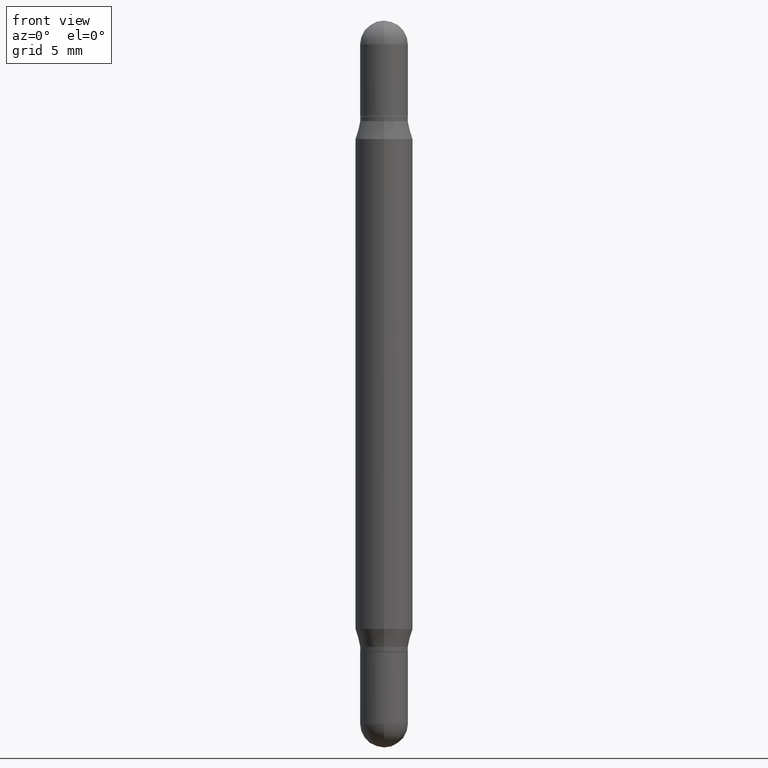
[diagram: clean part render]
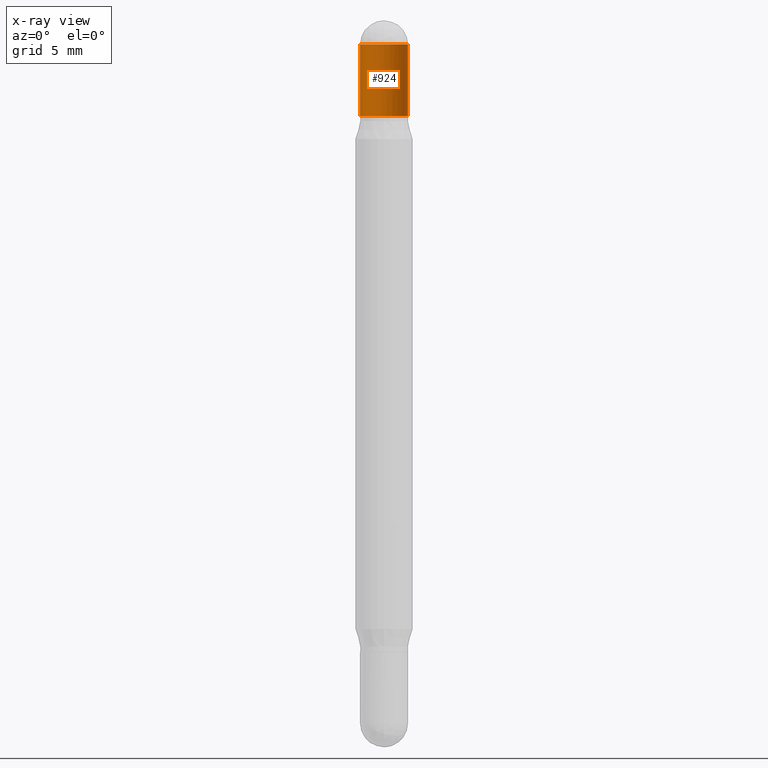
[diagram: x-ray — body ghosted, one internal face saturated and labeled with its STEP entity id]
A machine part, front view, then the same camera in x-ray: the body is ghosted and one INTERNAL B-rep face — a face not visible from any outside direction — is saturated and labeled: STEP entity #924.
In plain terms, the highlighted cylindrical surface (edge-blend (fillet) strip) has radius 1.2497 mm, axis along (-0, -0, -1).
Its self-contained STEP definition (entity closure, byte-faithful):
#3 = CARTESIAN_POINT ( 'NONE',  ( 0.04920000000000000068, -7.806053374026365475E-16, -0.04920000000000011864 ) ) ;
#66 = VERTEX_POINT ( 'NONE', #3 ) ;
#118 = EDGE_LOOP ( 'NONE', ( #401, #148, #852, #803, #239 ) ) ;
#129 = DIRECTION ( 'NONE',  ( -2.445468806185136877E-29, -3.479614466977828648E-15, -1.000000000000000000 ) ) ;
#135 = CARTESIAN_POINT ( 'NONE',  ( -0.04920000000000000068, -4.877191716054020290E-15, -1.496099999999999985 ) ) ;
#147 = CIRCLE ( 'NONE', #206, 0.04920000000000000068 ) ;
#148 = ORIENTED_EDGE ( 'NONE', *, *, #1107, .F. ) ;
#181 = EDGE_CURVE ( 'NONE', #66, #990, #563, .T. ) ;
#193 = DIRECTION ( 'NONE',  ( 1.000000000000000000, -6.982962677686266711E-15, 0.000000000000000000 ) ) ;
#206 = AXIS2_PLACEMENT_3D ( 'NONE', #622, #958, #769 ) ;
#223 = AXIS2_PLACEMENT_3D ( 'NONE', #451, #604, #360 ) ;
#239 = ORIENTED_EDGE ( 'NONE', *, *, #582, .T. ) ;
#243 = CARTESIAN_POINT ( 'NONE',  ( 0.000000000000000000, -5.214728217544379106E-15, -1.496099999999999985 ) ) ;
#281 = DIRECTION ( 'NONE',  ( 2.445468806185136597E-29, 3.479614466977828254E-15, 1.000000000000000000 ) ) ;
#293 = VECTOR ( 'NONE', #1108, 39.37007874015748143 ) ;
#295 = EDGE_CURVE ( 'NONE', #66, #1015, #1102, .T. ) ;
#300 = CARTESIAN_POINT ( 'NONE',  ( -0.04920000000000000068, -9.950707217011283845E-17, -0.04920000000000011864 ) ) ;
#335 = DIRECTION ( 'NONE',  ( 1.000000000000000000, -6.982962677686261977E-15, 0.000000000000000000 ) ) ;
#344 = FACE_OUTER_BOUND ( 'NONE', #118, .T. ) ;
#360 = DIRECTION ( 'NONE',  ( 1.000000000000000000, -6.982962677686266711E-15, 0.000000000000000000 ) ) ;
#401 = ORIENTED_EDGE ( 'NONE', *, *, #820, .F. ) ;
#407 = CIRCLE ( 'NONE', #223, 0.04920000000000000068 ) ;
#409 = CARTESIAN_POINT ( 'NONE',  ( -0.04920000000000000068, -9.950707217011314659E-17, -0.1969000000000000195 ) ) ;
#451 = CARTESIAN_POINT ( 'NONE',  ( 3.177153072995728757E-29, -6.940131020467850566E-16, -0.1969000000000000195 ) ) ;
#520 = CYLINDRICAL_SURFACE ( 'NONE', #759, 0.04920000000000000068 ) ;
#563 = CIRCLE ( 'NONE', #705, 0.04920000000000000068 ) ;
#582 = EDGE_CURVE ( 'NONE', #1015, #875, #407, .T. ) ;
#604 = DIRECTION ( 'NONE',  ( 2.445468806185136597E-29, 3.479614466977828254E-15, 1.000000000000000000 ) ) ;
#622 = CARTESIAN_POINT ( 'NONE',  ( 3.538348815669273817E-29, -1.800740452741599516E-16, -0.04920000000000011864 ) ) ;
#705 = AXIS2_PLACEMENT_3D ( 'NONE', #800, #281, #193 ) ;
#731 = VERTEX_POINT ( 'NONE', #300 ) ;
#759 = AXIS2_PLACEMENT_3D ( 'NONE', #243, #1004, #335 ) ;
#762 = CARTESIAN_POINT ( 'NONE',  ( 0.04920000000000000068, -5.558289981286543630E-15, -1.496099999999999985 ) ) ;
#769 = DIRECTION ( 'NONE',  ( 1.000000000000000000, -6.982962677686266711E-15, 0.000000000000000000 ) ) ;
#800 = CARTESIAN_POINT ( 'NONE',  ( 3.538348815669273817E-29, -1.800740452741599516E-16, -0.04920000000000011864 ) ) ;
#803 = ORIENTED_EDGE ( 'NONE', *, *, #295, .T. ) ;
#820 = EDGE_CURVE ( 'NONE', #731, #875, #983, .T. ) ;
#852 = ORIENTED_EDGE ( 'NONE', *, *, #181, .F. ) ;
#875 = VERTEX_POINT ( 'NONE', #409 ) ;
#881 = CARTESIAN_POINT ( 'NONE',  ( 3.375365014903949056E-16, 0.04919999999999984802, -0.04920000000000029211 ) ) ;
#924 = ADVANCED_FACE ( 'NONE', ( #344 ), #520, .T. ) ;
#956 = VECTOR ( 'NONE', #129, 39.37007874015748143 ) ;
#958 = DIRECTION ( 'NONE',  ( 2.445468806185136597E-29, 3.479614466977828254E-15, 1.000000000000000000 ) ) ;
#983 = LINE ( 'NONE', #135, #956 ) ;
#990 = VERTEX_POINT ( 'NONE', #881 ) ;
#1004 = DIRECTION ( 'NONE',  ( -2.445468806185136597E-29, -3.479614466977828254E-15, -1.000000000000000000 ) ) ;
#1015 = VERTEX_POINT ( 'NONE', #1055 ) ;
#1055 = CARTESIAN_POINT ( 'NONE',  ( 0.04920000000000000068, -1.037574865788949384E-15, -0.1969000000000000195 ) ) ;
#1102 = LINE ( 'NONE', #762, #293 ) ;
#1107 = EDGE_CURVE ( 'NONE', #990, #731, #147, .T. ) ;
#1108 = DIRECTION ( 'NONE',  ( -2.445468806185136877E-29, -3.479614466977828648E-15, -1.000000000000000000 ) ) ;